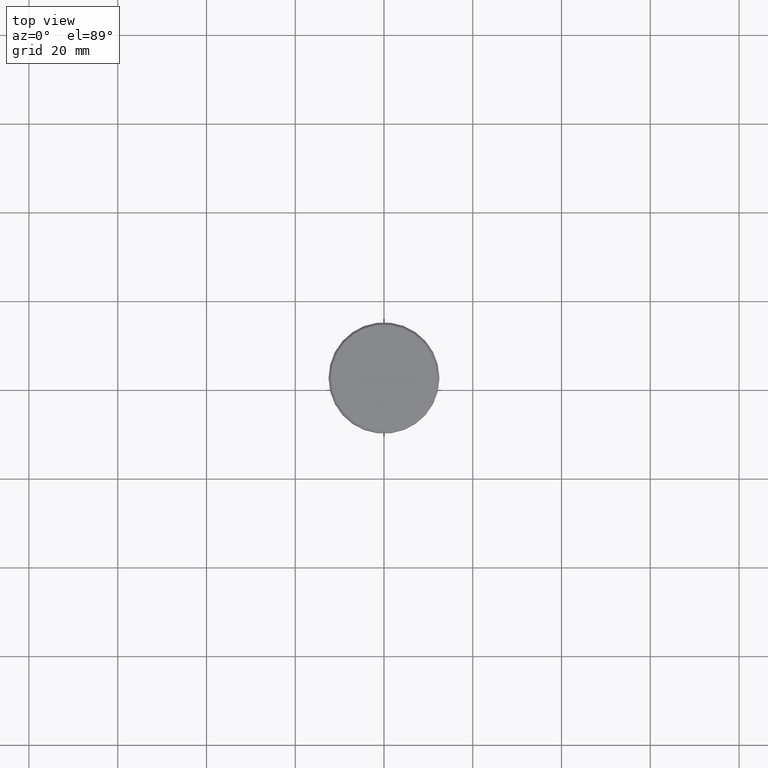
[diagram: clean part render]
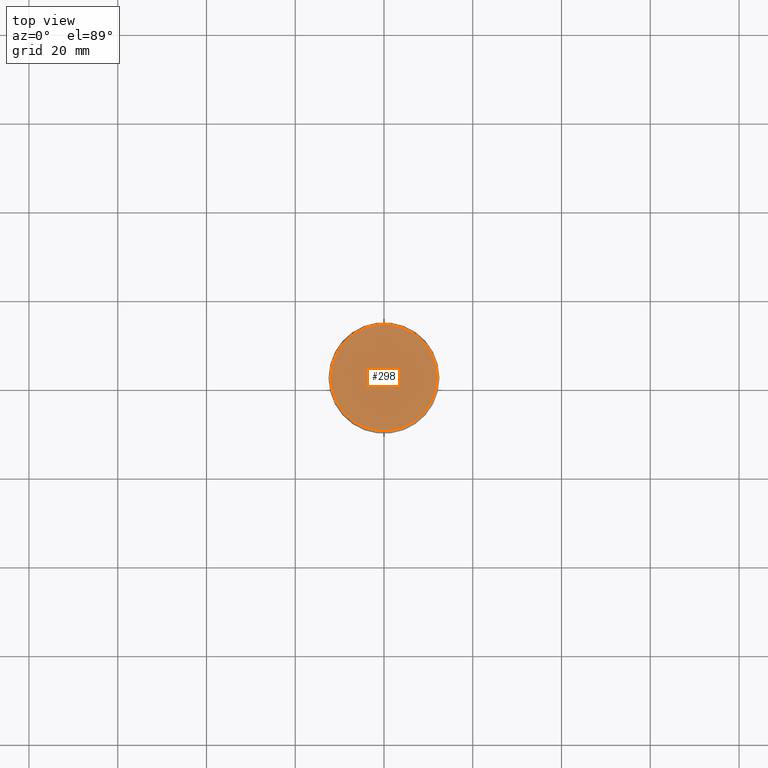
[diagram: same view with one face highlighted and labeled with its STEP entity id]
A machine part, top view. The second image highlights one B-rep face of the part: STEP entity #298.
In plain terms, the highlighted planar face has unit normal (0, -0, 1).
Its self-contained STEP definition (entity closure, byte-faithful):
#73 = DIRECTION ( 'NONE',  ( -0.000000000000000000, -0.000000000000000000, 1.000000000000000000 ) ) ;
#80 = CIRCLE ( 'NONE', #617, 12.00000000000002487 ) ;
#86 = EDGE_LOOP ( 'NONE', ( #192, #705 ) ) ;
#99 = EDGE_CURVE ( 'NONE', #1003, #1078, #816, .T. ) ;
#105 = AXIS2_PLACEMENT_3D ( 'NONE', #569, #740, #556 ) ;
#116 = EDGE_CURVE ( 'NONE', #1078, #1003, #80, .T. ) ;
#159 = AXIS2_PLACEMENT_3D ( 'NONE', #1146, #614, #967 ) ;
#192 = ORIENTED_EDGE ( 'NONE', *, *, #116, .T. ) ;
#194 = FACE_OUTER_BOUND ( 'NONE', #86, .T. ) ;
#209 = PLANE ( 'NONE',  #105 ) ;
#298 = ADVANCED_FACE ( 'NONE', ( #194 ), #209, .T. ) ;
#556 = DIRECTION ( 'NONE',  ( 1.000000000000000000, 0.000000000000000000, 0.000000000000000000 ) ) ;
#569 = CARTESIAN_POINT ( 'NONE',  ( 0.000000000000000000, 0.000000000000000000, 0.000000000000000000 ) ) ;
#614 = DIRECTION ( 'NONE',  ( -0.000000000000000000, -0.000000000000000000, 1.000000000000000000 ) ) ;
#617 = AXIS2_PLACEMENT_3D ( 'NONE', #887, #73, #964 ) ;
#681 = CARTESIAN_POINT ( 'NONE',  ( 12.00000000000002487, 1.500192328955509115E-15, 0.000000000000000000 ) ) ;
#705 = ORIENTED_EDGE ( 'NONE', *, *, #99, .T. ) ;
#740 = DIRECTION ( 'NONE',  ( 0.000000000000000000, -0.000000000000000000, 1.000000000000000000 ) ) ;
#816 = CIRCLE ( 'NONE', #159, 12.00000000000002487 ) ;
#887 = CARTESIAN_POINT ( 'NONE',  ( 0.000000000000000000, 0.000000000000000000, 0.000000000000000000 ) ) ;
#964 = DIRECTION ( 'NONE',  ( 1.000000000000000000, 0.000000000000000000, 0.000000000000000000 ) ) ;
#967 = DIRECTION ( 'NONE',  ( 1.000000000000000000, 0.000000000000000000, 0.000000000000000000 ) ) ;
#1003 = VERTEX_POINT ( 'NONE', #681 ) ;
#1078 = VERTEX_POINT ( 'NONE', #1158 ) ;
#1146 = CARTESIAN_POINT ( 'NONE',  ( 0.000000000000000000, 0.000000000000000000, 0.000000000000000000 ) ) ;
#1158 = CARTESIAN_POINT ( 'NONE',  ( -12.00000000000002487, 0.000000000000000000, 0.000000000000000000 ) ) ;